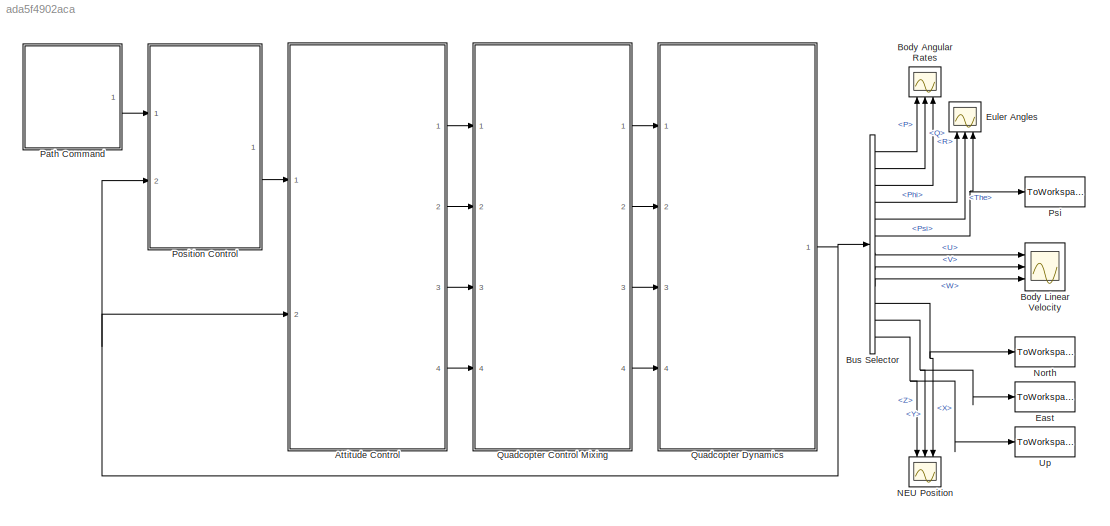
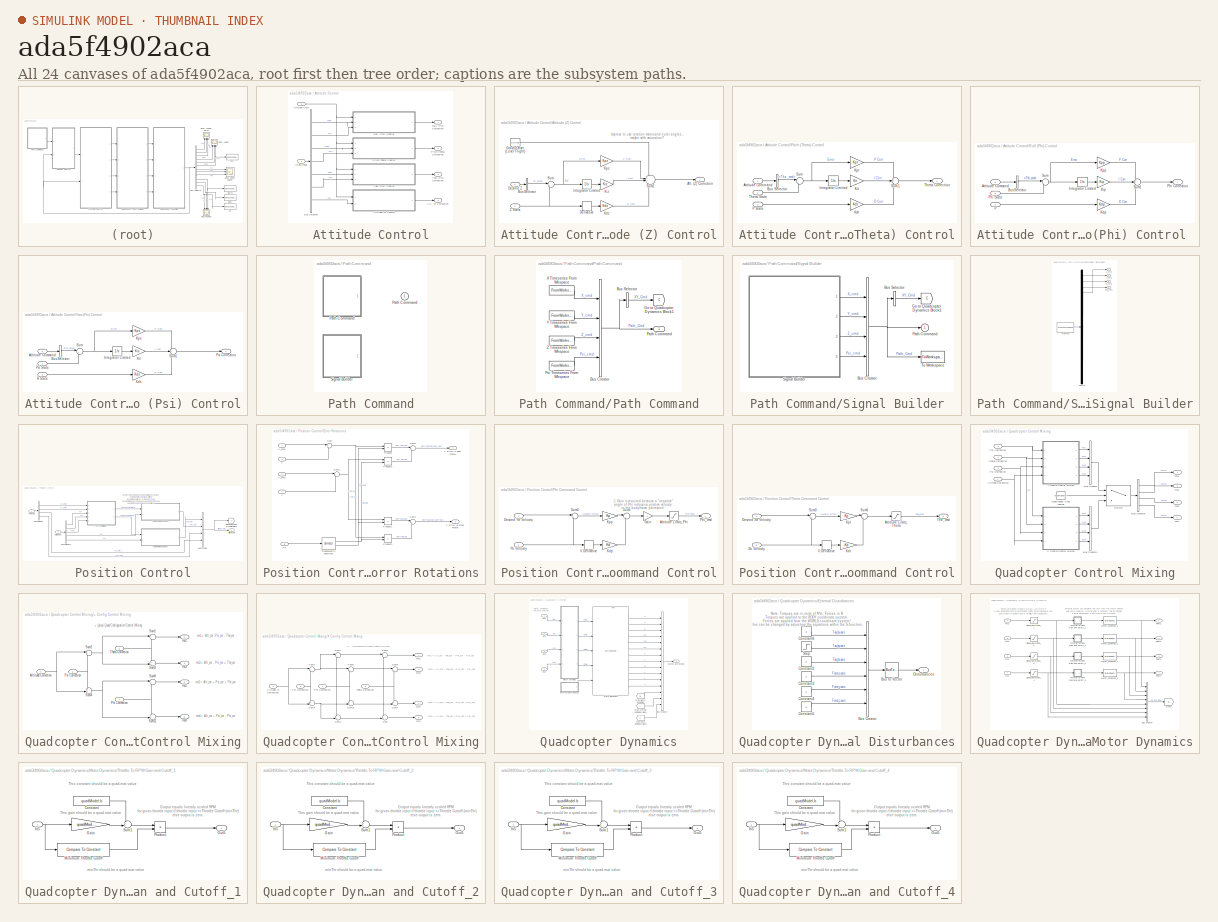
[diagram: thumbnail index - all 24 canvases of the model, root first then tree order]
MODEL slx_ada5f4902aca
KIND model
CONFIG AbsTol = auto
CONFIG FixedStep = auto
CONFIG MaxStep = auto
CONFIG MinStep = auto
CONFIG RelTol = 1e-3
CONFIG SampleTimeConstraint = Unconstrained
CONFIG Solver = VariableStepAuto
CONFIG SolverMode = Auto
CONFIG SolverName = VariableStepAuto
CONFIG StartTime = 0.0
CONFIG StopTime = 600
BLOCK [SubSystem] Attitude Control
  Ports = [2, 4]
  RequestExecContextInheritance = off
  Variant = off
BLOCK [Outport] Attitude Control/Alt. (Z) Correction
  IconDisplay = Port number
  Port = 4
BLOCK [SubSystem] Attitude Control/Altitude (Z) Control
  Ports = [2, 1]
  RequestExecContextInheritance = off
  Variant = off
BLOCK [Outport] Attitude Control/Altitude (Z) Control/Alt. (Z) Correction
  IconDisplay = Port number
BLOCK [BusSelector] Attitude Control/Altitude (Z) Control/Bus Selector
  OutputSignals = Z_cmd
  Ports = [1, 1]
BLOCK [Derivative] Attitude Control/Altitude (Z) Control/Derivative
BLOCK [Inport] Attitude Control/Altitude (Z) Control/Desired Z
  IconDisplay = Port number
BLOCK [Constant] Attitude Control/Altitude (Z) Control/Gravity Offset (Level Flight)
  Value = GOffset
BLOCK [Integrator] Attitude Control/Altitude (Z) Control/Integrator Limited
  LimitOutput = on
  LowerSaturationLimit = LSat
  Ports = [1, 1]
  UpperSaturationLimit = USat
BLOCK [Gain] Attitude Control/Altitude (Z) Control/Kdz
  Gain = Kdz
  OutDataTypeStr = Inherit: Inherit via internal rule
  ParamDataTypeStr = Inherit: Inherit via internal rule
  SaturateOnIntegerOverflow = off
BLOCK [Gain] Attitude Control/Altitude (Z) Control/Kiz
  Gain = Kiz
  OutDataTypeStr = Inherit: Inherit via internal rule
  ParamDataTypeStr = Inherit: Inherit via internal rule
  SaturateOnIntegerOverflow = off
BLOCK [Gain] Attitude Control/Altitude (Z) Control/Kpz
  Gain = Kpz
  OutDataTypeStr = Inherit: Inherit via internal rule
  ParamDataTypeStr = Inherit: Inherit via internal rule
  SaturateOnIntegerOverflow = off
BLOCK [Sum] Attitude Control/Altitude (Z) Control/Sum
  IconShape = round
  InputSameDT = off
  Inputs = |+-
  OutDataTypeStr = Inherit: Inherit via internal rule
  Ports = [2, 1]
  SaturateOnIntegerOverflow = off
BLOCK [Sum] Attitude Control/Altitude (Z) Control/Sum2
  IconShape = round
  InputSameDT = off
  Inputs = +++-
  OutDataTypeStr = Inherit: Inherit via internal rule
  Ports = [4, 1]
  SaturateOnIntegerOverflow = off
BLOCK [Inport] Attitude Control/Altitude (Z) Control/Z State
  IconDisplay = Port number
  Port = 2
BLOCK [Inport] Attitude Control/Attitude Cmd
  IconDisplay = Port number
BLOCK [BusSelector] Attitude Control/Bus Selector
  OutputSignals = Phi,P,The,Q,Psi,R,Z
  Ports = [1, 7]
BLOCK [SubSystem] Attitude Control/Pitch (Theta) Control
  Ports = [3, 1]
  RequestExecContextInheritance = off
  Variant = off
BLOCK [Inport] Attitude Control/Pitch (Theta) Control/Attitude Command
  IconDisplay = Port number
BLOCK [BusSelector] Attitude Control/Pitch (Theta) Control/Bus Selector
  OutputSignals = The_cmd
  Ports = [1, 1]
BLOCK [Integrator] Attitude Control/Pitch (Theta) Control/Integrator Limited
  LimitOutput = on
  LowerSaturationLimit = LSat
  Ports = [1, 1]
  UpperSaturationLimit = USat
BLOCK [Gain] Attitude Control/Pitch (Theta) Control/Kdt
  Gain = Kdt
  OutDataTypeStr = Inherit: Inherit via internal rule
  ParamDataTypeStr = Inherit: Inherit via internal rule
  SaturateOnIntegerOverflow = off
BLOCK [Gain] Attitude Control/Pitch (Theta) Control/Kit
  Gain = Kit
  OutDataTypeStr = Inherit: Inherit via internal rule
  ParamDataTypeStr = Inherit: Inherit via internal rule
  SaturateOnIntegerOverflow = off
BLOCK [Gain] Attitude Control/Pitch (Theta) Control/Kpt
  Gain = Kpt
  OutDataTypeStr = Inherit: Inherit via internal rule
  ParamDataTypeStr = Inherit: Inherit via internal rule
  SaturateOnIntegerOverflow = off
BLOCK [Inport] Attitude Control/Pitch (Theta) Control/P State
  IconDisplay = Port number
  Port = 3
BLOCK [Sum] Attitude Control/Pitch (Theta) Control/Sum
  IconShape = round
  InputSameDT = off
  Inputs = |+-
  OutDataTypeStr = Inherit: Inherit via internal rule
  Ports = [2, 1]
  SaturateOnIntegerOverflow = off
BLOCK [Sum] Attitude Control/Pitch (Theta) Control/Sum1
  IconShape = round
  InputSameDT = off
  Inputs = ++-
  OutDataTypeStr = Inherit: Inherit via internal rule
  Ports = [3, 1]
  SaturateOnIntegerOverflow = off
BLOCK [Outport] Attitude Control/Pitch (Theta) Control/Theta Correction
  IconDisplay = Port number
BLOCK [Inport] Attitude Control/Pitch (Theta) Control/Theta State
  IconDisplay = Port number
  Port = 2
BLOCK [Outport] Attitude Control/Pitch (Theta) Correction
  IconDisplay = Port number
  Port = 2
BLOCK [SubSystem] Attitude Control/Roll (Phi) Control 
  Ports = [3, 1]
  RequestExecContextInheritance = off
  Variant = off
BLOCK [Inport] Attitude Control/Roll (Phi) Control /Attitude Command 
  IconDisplay = Port number
BLOCK [BusSelector] Attitude Control/Roll (Phi) Control /Bus Selector
  OutputSignals = Phi_cmd
  Ports = [1, 1]
BLOCK [Integrator] Attitude Control/Roll (Phi) Control /Integrator Limited
  LimitOutput = on
  LowerSaturationLimit = LSat
  Ports = [1, 1]
  UpperSaturationLimit = USat
BLOCK [Gain] Attitude Control/Roll (Phi) Control /Kdp
  Gain = Kdp
  OutDataTypeStr = Inherit: Inherit via internal rule
  ParamDataTypeStr = Inherit: Inherit via internal rule
  SaturateOnIntegerOverflow = off
BLOCK [Gain] Attitude Control/Roll (Phi) Control /Kip
  Gain = Kip
  OutDataTypeStr = Inherit: Inherit via internal rule
  ParamDataTypeStr = Inherit: Inherit via internal rule
  SaturateOnIntegerOverflow = off
BLOCK [Gain] Attitude Control/Roll (Phi) Control /Kpp
  Gain = Kpp
  OutDataTypeStr = Inherit: Inherit via internal rule
  ParamDataTypeStr = Inherit: Inherit via internal rule
  SaturateOnIntegerOverflow = off
BLOCK [Inport] Attitude Control/Roll (Phi) Control /P
  IconDisplay = Port number
  Port = 3
BLOCK [Outport] Attitude Control/Roll (Phi) Control /Phi Correction
  IconDisplay = Port number
BLOCK [Inport] Attitude Control/Roll (Phi) Control /Phi State
  IconDisplay = Port number
  Port = 2
BLOCK [Sum] Attitude Control/Roll (Phi) Control /Sum
  IconShape = round
  InputSameDT = off
  Inputs = |+-
  OutDataTypeStr = Inherit: Inherit via internal rule
  Ports = [2, 1]
  SaturateOnIntegerOverflow = off
BLOCK [Sum] Attitude Control/Roll (Phi) Control /Sum1
  IconShape = round
  InputSameDT = off
  Inputs = ++-
  OutDataTypeStr = Inherit: Inherit via internal rule
  Ports = [3, 1]
  SaturateOnIntegerOverflow = off
BLOCK [Outport] Attitude Control/Roll (Phi) Correction
  IconDisplay = Port number
BLOCK [Inport] Attitude Control/State Input
  IconDisplay = Port number
  Port = 2
BLOCK [SubSystem] Attitude Control/Yaw (Psi) Control
  Ports = [3, 1]
  RequestExecContextInheritance = off
  Variant = off
BLOCK [Inport] Attitude Control/Yaw (Psi) Control/Attitude Command
  IconDisplay = Port number
BLOCK [BusSelector] Attitude Control/Yaw (Psi) Control/Bus Selector
  OutputSignals = Psi_cmd
  Ports = [1, 1]
BLOCK [Integrator] Attitude Control/Yaw (Psi) Control/Integrator Limited
  LimitOutput = on
  LowerSaturationLimit = LSat
  Ports = [1, 1]
  UpperSaturationLimit = USat
BLOCK [Gain] Attitude Control/Yaw (Psi) Control/Kds
  Gain = Kds
  OutDataTypeStr = Inherit: Inherit via internal rule
  ParamDataTypeStr = Inherit: Inherit via internal rule
  SaturateOnIntegerOverflow = off
BLOCK [Gain] Attitude Control/Yaw (Psi) Control/Kit
  Gain = Kis
  OutDataTypeStr = Inherit: Inherit via internal rule
  ParamDataTypeStr = Inherit: Inherit via internal rule
  SaturateOnIntegerOverflow = off
BLOCK [Gain] Attitude Control/Yaw (Psi) Control/Kps
  Gain = Kps
  OutDataTypeStr = Inherit: Inherit via internal rule
  ParamDataTypeStr = Inherit: Inherit via internal rule
  SaturateOnIntegerOverflow = off
BLOCK [Outport] Attitude Control/Yaw (Psi) Control/Psi Correction
  IconDisplay = Port number
BLOCK [Inport] Attitude Control/Yaw (Psi) Control/Psi State
  IconDisplay = Port number
  Port = 2
BLOCK [Inport] Attitude Control/Yaw (Psi) Control/R State
  IconDisplay = Port number
  Port = 3
BLOCK [Sum] Attitude Control/Yaw (Psi) Control/Sum
  IconShape = round
  InputSameDT = off
  Inputs = |+-
  OutDataTypeStr = Inherit: Inherit via internal rule
  Ports = [2, 1]
  SaturateOnIntegerOverflow = off
BLOCK [Sum] Attitude Control/Yaw (Psi) Control/Sum1
  IconShape = round
  InputSameDT = off
  Inputs = ++-
  OutDataTypeStr = Inherit: Inherit via internal rule
  Ports = [3, 1]
  SaturateOnIntegerOverflow = off
BLOCK [Outport] Attitude Control/Yaw (Psi) Correction
  IconDisplay = Port number
  Port = 3
BLOCK [Scope] Body Angular Rates
  NumInputPorts = 3
  Ports = [3]
  ScopeSpecificationString = Simulink.scopes.TimeScopeBlockCfg('CurrentConfiguration', extmgr.ConfigurationSet(extmgr.Configuration('Core','General UI',true),extmgr.Configuration('Core','Source UI',true),extmgr.Configuration('Sources','WiredSimulink',true),extmgr.Configuration('Visuals','Time Domain',true,'SerializedDisplays',{struct('MinYLimReal','-0.77581','MaxYLimReal','0.62337','YLabelReal','','MinYLimMag','0.00000','MaxY...<+1360ch>
BLOCK [Scope] Body Linear Velocity
  NumInputPorts = 3
  Ports = [3]
  ScopeSpecificationString = Simulink.scopes.TimeScopeBlockCfg('CurrentConfiguration', extmgr.ConfigurationSet(extmgr.Configuration('Core','General UI',true),extmgr.Configuration('Core','Source UI',true),extmgr.Configuration('Sources','WiredSimulink',true,'DataLoggingVariableName','ScopeData2'),extmgr.Configuration('Visuals','Time Domain',true,'SerializedDisplays',{struct('MinYLimReal','-1.03125','MaxYLimReal','1.70583','YLab...<+1399ch>
BLOCK [BusSelector] Bus Selector
  OutputSignals = P,Q,R,Phi,The,Psi,U,V,W,X,Y,Z
  Ports = [1, 12]
BLOCK [ToWorkspace] East
  FixptAsFi = on
  MaxDataPoints = inf
  Ports = [1]
  SampleTime = -1
  Save2DSignal = 3-D array (concatenate along third dimension)
  SaveFormat = Timeseries
  VariableName = posE
BLOCK [Scope] Euler Angles
  NumInputPorts = 3
  Ports = [3]
  ScopeSpecificationString = Simulink.scopes.TimeScopeBlockCfg('CurrentConfiguration', extmgr.ConfigurationSet(extmgr.Configuration('Core','General UI',true),extmgr.Configuration('Core','Source UI',true),extmgr.Configuration('Sources','WiredSimulink',true,'DataLoggingVariableName','ScopeData1'),extmgr.Configuration('Visuals','Time Domain',true,'SerializedDisplays',{struct('MinYLimReal','-0.21612','MaxYLimReal','0.21901','YLab...<+1403ch>
BLOCK [Scope] NEU Position
  NumInputPorts = 3
  Ports = [3]
  ScopeSpecificationString = Simulink.scopes.TimeScopeBlockCfg('CurrentConfiguration', extmgr.ConfigurationSet(extmgr.Configuration('Core','General UI',true),extmgr.Configuration('Core','Source UI',true),extmgr.Configuration('Sources','WiredSimulink',true,'DataLoggingVariableName','ScopeData3'),extmgr.Configuration('Visuals','Time Domain',true,'SerializedDisplays',{struct('MinYLimReal','-1.52949','MaxYLimReal','4.09197','YLab...<+1427ch>
BLOCK [ToWorkspace] North
  FixptAsFi = on
  MaxDataPoints = inf
  Ports = [1]
  SampleTime = -1
  Save2DSignal = 3-D array (concatenate along third dimension)
  SaveFormat = Timeseries
  VariableName = posN
BLOCK [SubSystem] Path Command
  OverrideUsingVariant = Variant1
  Ports = [0, 1]
  RequestExecContextInheritance = off
  Variant = on
BLOCK [SubSystem] Path Command/Path Command
  Ports = [0, 1]
  RequestExecContextInheritance = off
  Variant = off
  VariantControl = Variant1
BLOCK [Outport] Path Command/Path Command 
  IconDisplay = Port number
BLOCK [BusCreator] Path Command/Path Command/Bus Creator
  DisplayOption = bar
  InheritFromInputs = on
  Inputs = 4
  Ports = [4, 1]
BLOCK [BusSelector] Path Command/Path Command/Bus Selector
  OutputAsBus = on
  OutputSignals = X_cmd,Y_cmd
  Ports = [1, 1]
BLOCK [Goto] Path Command/Path Command/Go to Quadcopter Dynamics Block1
  GotoTag = C
  TagVisibility = global
BLOCK [Outport] Path Command/Path Command/Path Command 
  IconDisplay = Port number
BLOCK [FromWorkspace] Path Command/Path Command/Psi Timeseries From Wkspace
  OutputAfterFinalValue = Holding final value
  SampleTime = 0
  VariableName = path.psi
  ZeroCross = on
BLOCK [FromWorkspace] Path Command/Path Command/X Timeseries From Wkspace
  OutputAfterFinalValue = Holding final value
  SampleTime = 0
  VariableName = path.x
  ZeroCross = on
BLOCK [FromWorkspace] Path Command/Path Command/Y Timeseries From Wkspace
  OutputAfterFinalValue = Holding final value
  SampleTime = 0
  VariableName = path.y
  ZeroCross = on
BLOCK [FromWorkspace] Path Command/Path Command/Z Timeseries From Wkspace
  OutputAfterFinalValue = Holding final value
  SampleTime = 0
  VariableName = path.z
  ZeroCross = on
BLOCK [SubSystem] Path Command/Signal Builder
  Ports = [0, 1]
  RequestExecContextInheritance = off
  Variant = off
  VariantControl = Variant
BLOCK [BusCreator] Path Command/Signal Builder/Bus Creator
  DisplayOption = bar
  InheritFromInputs = on
  Inputs = 4
  Ports = [4, 1]
BLOCK [BusSelector] Path Command/Signal Builder/Bus Selector
  OutputAsBus = on
  OutputSignals = X_cmd,Y_cmd
  Ports = [1, 1]
BLOCK [Goto] Path Command/Signal Builder/Go to Quadcopter Dynamics Block1
  GotoTag = C
  TagVisibility = global
BLOCK [Outport] Path Command/Signal Builder/Path Command 
  IconDisplay = Port number
BLOCK [SubSystem] Path Command/Signal Builder/Signal Builder
  ClipboardFcn = sigbuilder_block('clipboard');
  CloseFcn = sigbuilder_block('close');
  ContinueFcn = sigbuilder_block('continue');
  CopyFcn = sigbuilder_block('copy');
  DeleteFcn = sigbuilder_block('delete');
  LoadFcn = sigbuilder_block('load');
  MaskHideContents = on
  ModelCloseFcn = sigbuilder_block('modelClose');
  NameChangeFcn = sigbuilder_block('namechange');
  OpenFcn = sigbuilder_block('open',[437.6 199.2 550.4 400 ]);
  PauseFcn = sigbuilder_block('pause');
  Ports = [0, 4]
  PreSaveFcn = sigbuilder_block('preSave');
  RequestExecContextInheritance = off
  StartFcn = sigbuilder_block('start');
  StopFcn = sigbuilder_block('stop');
  Tag = STV Subsys
  Variant = off
BLOCK [Demux] Path Command/Signal Builder/Signal Builder/Demux
  Ports = [1, 4]
  Tag = STV Demux
BLOCK [FromWorkspace] Path Command/Signal Builder/Signal Builder/FromWs
  SampleTime = 0
  Tag = STV FromWs
  VariableName = tuvar
  ZeroCross = on
BLOCK [Outport] Path Command/Signal Builder/Signal Builder/Psi_cmd
  IconDisplay = Port number
  Port = 4
  Tag = STV Outport
BLOCK [Outport] Path Command/Signal Builder/Signal Builder/X_cmd
  IconDisplay = Port number
  Tag = STV Outport
BLOCK [Outport] Path Command/Signal Builder/Signal Builder/Y_cmd
  IconDisplay = Port number
  Port = 2
  Tag = STV Outport
BLOCK [Outport] Path Command/Signal Builder/Signal Builder/Z_cmd
  IconDisplay = Port number
  Port = 3
  Tag = STV Outport
BLOCK [ToWorkspace] Path Command/Signal Builder/To Workspace
  FixptAsFi = on
  MaxDataPoints = inf
  Ports = [1]
  SampleTime = -1
  Save2DSignal = 3-D array (concatenate along third dimension)
  SaveFormat = Timeseries
  VariableName = path
BLOCK [SubSystem] Position Control
  Ports = [2, 1]
  RequestExecContextInheritance = off
  Variant = off
BLOCK [Outport] Position Control/Attitude Cmd
  IconDisplay = Port number
BLOCK [BusCreator] Position Control/Bus Creator
  DisplayOption = bar
  InheritFromInputs = on
  Inputs = 4
  Ports = [4, 1]
BLOCK [BusSelector] Position Control/Bus Selector
  OutputSignals = X_cmd,Y_cmd,Z_cmd,Psi_cmd
  Ports = [1, 4]
BLOCK [BusSelector] Position Control/Bus Selector1
  OutputSignals = X,Y,Psi,U,V
  Ports = [1, 5]
BLOCK [SubSystem] Position Control/Error Rotations
  Ports = [5, 2]
  RequestExecContextInheritance = off
  Variant = off
BLOCK [Product] Position Control/Error Rotations/Product
  InputSameDT = off
  OutDataTypeStr = Inherit: Inherit via internal rule
  Ports = [2, 1]
  RndMeth = Floor
  SaturateOnIntegerOverflow = off
BLOCK [Product] Position Control/Error Rotations/Product1
  InputSameDT = off
  OutDataTypeStr = Inherit: Inherit via internal rule
  Ports = [2, 1]
  RndMeth = Floor
  SaturateOnIntegerOverflow = off
BLOCK [Product] Position Control/Error Rotations/Product2
  InputSameDT = off
  OutDataTypeStr = Inherit: Inherit via internal rule
  Ports = [2, 1]
  RndMeth = Floor
  SaturateOnIntegerOverflow = off
BLOCK [Product] Position Control/Error Rotations/Product3
  InputSameDT = off
  OutDataTypeStr = Inherit: Inherit via internal rule
  Ports = [2, 1]
  RndMeth = Floor
  SaturateOnIntegerOverflow = off
BLOCK [Inport] Position Control/Error Rotations/Psi
  IconDisplay = Port number
  Port = 5
BLOCK [Sum] Position Control/Error Rotations/Sum
  IconShape = round
  InputSameDT = off
  Inputs = |+-
  OutDataTypeStr = Inherit: Inherit via internal rule
  Ports = [2, 1]
  SaturateOnIntegerOverflow = off
BLOCK [Sum] Position Control/Error Rotations/Sum1
  IconShape = round
  InputSameDT = off
  Inputs = |+-
  OutDataTypeStr = Inherit: Inherit via internal rule
  Ports = [2, 1]
  SaturateOnIntegerOverflow = off
BLOCK [Sum] Position Control/Error Rotations/Sum2
  IconShape = round
  InputSameDT = off
  Inputs = |++
  OutDataTypeStr = Inherit: Inherit via internal rule
  Ports = [2, 1]
  SaturateOnIntegerOverflow = off
BLOCK [Sum] Position Control/Error Rotations/Sum4
  IconShape = round
  InputSameDT = off
  Inputs = |+-
  OutDataTypeStr = Inherit: Inherit via internal rule
  Ports = [2, 1]
  SaturateOnIntegerOverflow = off
BLOCK [Trigonometry] Position Control/Error Rotations/Trigonometric Functions
  Operator = sincos
  Ports = [1, 2]
BLOCK [Inport] Position Control/Error Rotations/X
  IconDisplay = Port number
  Port = 3
BLOCK [Outport] Position Control/Error Rotations/X Error in body Frame
  IconDisplay = Port number
BLOCK [Inport] Position Control/Error Rotations/X_cmd
  IconDisplay = Port number
BLOCK [Inport] Position Control/Error Rotations/Y
  IconDisplay = Port number
  Port = 4
BLOCK [Outport] Position Control/Error Rotations/Y Error in Body Frame
  IconDisplay = Port number
  Port = 2
BLOCK [Inport] Position Control/Error Rotations/Y_cmd
  IconDisplay = Port number
  Port = 2
BLOCK [Goto] Position Control/Goto Quadcopter Dynamics Block
  TagVisibility = global
BLOCK [Inport] Position Control/Path Cmd
  IconDisplay = Port number
BLOCK [SubSystem] Position Control/Phi Command Control
  Ports = [2, 1]
  RequestExecContextInheritance = off
  Variant = off
BLOCK [Saturate] Position Control/Phi Command Control/Attitude Limits_Phi
  InputPortMap = u0
  LowerLimit = -ASat
  Ports = [1, 1]
  UpperLimit = ASat
BLOCK [Inport] Position Control/Phi Command Control/Desired Yb Velocity
  IconDisplay = Port number
BLOCK [Gain] Position Control/Phi Command Control/Gain
  Gain = -1
  OutDataTypeStr = Inherit: Inherit via internal rule
  ParamDataTypeStr = Inherit: Inherit via internal rule
  SaturateOnIntegerOverflow = off
BLOCK [Gain] Position Control/Phi Command Control/Kdp
  Gain = Kd
  OutDataTypeStr = Inherit: Inherit via internal rule
  ParamDataTypeStr = Inherit: Inherit via internal rule
  SaturateOnIntegerOverflow = off
BLOCK [Gain] Position Control/Phi Command Control/Kpp
  Gain = Kp
  OutDataTypeStr = Inherit: Inherit via internal rule
  ParamDataTypeStr = Inherit: Inherit via internal rule
  SaturateOnIntegerOverflow = off
BLOCK [Outport] Position Control/Phi Command Control/Phi_cmd
  IconDisplay = Port number
BLOCK [Sum] Position Control/Phi Command Control/Sum3
  IconShape = round
  InputSameDT = off
  Inputs = |+-
  OutDataTypeStr = Inherit: Inherit via internal rule
  Ports = [2, 1]
  SaturateOnIntegerOverflow = off
BLOCK [Sum] Position Control/Phi Command Control/Sum6
  IconShape = round
  InputSameDT = off
  Inputs = |+-
  OutDataTypeStr = Inherit: Inherit via internal rule
  Ports = [2, 1]
  SaturateOnIntegerOverflow = off
BLOCK [Derivative] Position Control/Phi Command Control/V Derivative
BLOCK [Inport] Position Control/Phi Command Control/Yb Velocity
  IconDisplay = Port number
  Port = 2
BLOCK [Inport] Position Control/State Input
  IconDisplay = Port number
  Port = 2
BLOCK [SubSystem] Position Control/Theta Command Control
  Ports = [2, 1]
  RequestExecContextInheritance = off
  Variant = off
BLOCK [Saturate] Position Control/Theta Command Control/Attitude Limits_Theta
  InputPortMap = u0
  LowerLimit = -ASat
  Ports = [1, 1]
  UpperLimit = ASat
BLOCK [Inport] Position Control/Theta Command Control/Desired Xb Velocity
  IconDisplay = Port number
BLOCK [Gain] Position Control/Theta Command Control/Kdt
  Gain = Kd
  OutDataTypeStr = Inherit: Inherit via internal rule
  ParamDataTypeStr = Inherit: Inherit via internal rule
  SaturateOnIntegerOverflow = off
BLOCK [Gain] Position Control/Theta Command Control/Kpt
  Gain = Kp
  OutDataTypeStr = Inherit: Inherit via internal rule
  ParamDataTypeStr = Inherit: Inherit via internal rule
  SaturateOnIntegerOverflow = off
BLOCK [Sum] Position Control/Theta Command Control/Sum3
  IconShape = round
  InputSameDT = off
  Inputs = |+-
  OutDataTypeStr = Inherit: Inherit via internal rule
  Ports = [2, 1]
  SaturateOnIntegerOverflow = off
BLOCK [Sum] Position Control/Theta Command Control/Sum6
  IconShape = round
  InputSameDT = off
  Inputs = |+-
  OutDataTypeStr = Inherit: Inherit via internal rule
  Ports = [2, 1]
  SaturateOnIntegerOverflow = off
BLOCK [Outport] Position Control/Theta Command Control/The_cmd
  IconDisplay = Port number
BLOCK [Derivative] Position Control/Theta Command Control/U Derivative
BLOCK [Inport] Position Control/Theta Command Control/Xb Velocity
  IconDisplay = Port number
  Port = 2
BLOCK [ToWorkspace] Psi
  FixptAsFi = on
  MaxDataPoints = inf
  Ports = [1]
  SampleTime = -1
  Save2DSignal = 3-D array (concatenate along third dimension)
  SaveFormat = Timeseries
  VariableName = attPsi
BLOCK [SubSystem] Quadcopter Control Mixing
  Ports = [4, 4]
  RequestExecContextInheritance = off
  Variant = off
BLOCK [SubSystem] Quadcopter Control Mixing/+ Config Control Mixing
  Ports = [4, 4]
  RequestExecContextInheritance = off
  Variant = off
BLOCK [Inport] Quadcopter Control Mixing/+ Config Control Mixing/Altitude Correction
  IconDisplay = Port number
  Port = 4
BLOCK [Inport] Quadcopter Control Mixing/+ Config Control Mixing/Phi Correction
  IconDisplay = Port number
BLOCK [Inport] Quadcopter Control Mixing/+ Config Control Mixing/Psi Correction
  IconDisplay = Port number
  Port = 3
BLOCK [Sum] Quadcopter Control Mixing/+ Config Control Mixing/Sum1
  IconShape = round
  InputSameDT = off
  Inputs = |+-
  OutDataTypeStr = Inherit: Inherit via internal rule
  Ports = [2, 1]
  SaturateOnIntegerOverflow = off
BLOCK [Sum] Quadcopter Control Mixing/+ Config Control Mixing/Sum11
  IconShape = round
  InputSameDT = off
  Inputs = -+|
  OutDataTypeStr = Inherit: Inherit via internal rule
  Ports = [2, 1]
  SaturateOnIntegerOverflow = off
BLOCK [Sum] Quadcopter Control Mixing/+ Config Control Mixing/Sum2
  IconShape = round
  InputSameDT = off
  Inputs = |+-
  OutDataTypeStr = Inherit: Inherit via internal rule
  Ports = [2, 1]
  SaturateOnIntegerOverflow = off
BLOCK [Sum] Quadcopter Control Mixing/+ Config Control Mixing/Sum3
  IconShape = round
  InputSameDT = off
  Inputs = ++|
  OutDataTypeStr = Inherit: Inherit via internal rule
  Ports = [2, 1]
  SaturateOnIntegerOverflow = off
BLOCK [Sum] Quadcopter Control Mixing/+ Config Control Mixing/Sum4
  IconShape = round
  InputSameDT = off
  Inputs = ++|
  OutDataTypeStr = Inherit: Inherit via internal rule
  Ports = [2, 1]
  SaturateOnIntegerOverflow = off
BLOCK [Sum] Quadcopter Control Mixing/+ Config Control Mixing/Sum8
  IconShape = round
  InputSameDT = off
  Inputs = |++
  OutDataTypeStr = Inherit: Inherit via internal rule
  Ports = [2, 1]
  SaturateOnIntegerOverflow = off
BLOCK [Inport] Quadcopter Control Mixing/+ Config Control Mixing/Theta Correction
  IconDisplay = Port number
  Port = 2
BLOCK [Outport] Quadcopter Control Mixing/+ Config Control Mixing/mc1
  IconDisplay = Port number
BLOCK [Outport] Quadcopter Control Mixing/+ Config Control Mixing/mc2
  IconDisplay = Port number
  Port = 2
BLOCK [Outport] Quadcopter Control Mixing/+ Config Control Mixing/mc3
  IconDisplay = Port number
  Port = 3
BLOCK [Outport] Quadcopter Control Mixing/+ Config Control Mixing/mc4
  IconDisplay = Port number
  Port = 4
BLOCK [Inport] Quadcopter Control Mixing/Altitude Correction
  IconDisplay = Port number
  Port = 4
BLOCK [BusCreator] Quadcopter Control Mixing/Bus Creator
  DisplayOption = bar
  InheritFromInputs = on
  Inputs = 4
  Ports = [4, 1]
BLOCK [BusCreator] Quadcopter Control Mixing/Bus Creator1
  DisplayOption = bar
  InheritFromInputs = on
  Inputs = 4
  Ports = [4, 1]
BLOCK [BusSelector] Quadcopter Control Mixing/Bus Selector
  OutputSignals = mc1,mc2,mc3,mc4
  Ports = [1, 4]
BLOCK [Inport] Quadcopter Control Mixing/Phi Correction
  IconDisplay = Port number
BLOCK [Inport] Quadcopter Control Mixing/Psi Correction
  IconDisplay = Port number
  Port = 3
BLOCK [Constant] Quadcopter Control Mixing/Quad Model Type Logical
  Value = quadModel.plusConfig
BLOCK [Switch] Quadcopter Control Mixing/Switch
  Criteria = u2 ~= 0
  InputSameDT = off
  SaturateOnIntegerOverflow = off
BLOCK [Inport] Quadcopter Control Mixing/Theta Correction
  IconDisplay = Port number
  Port = 2
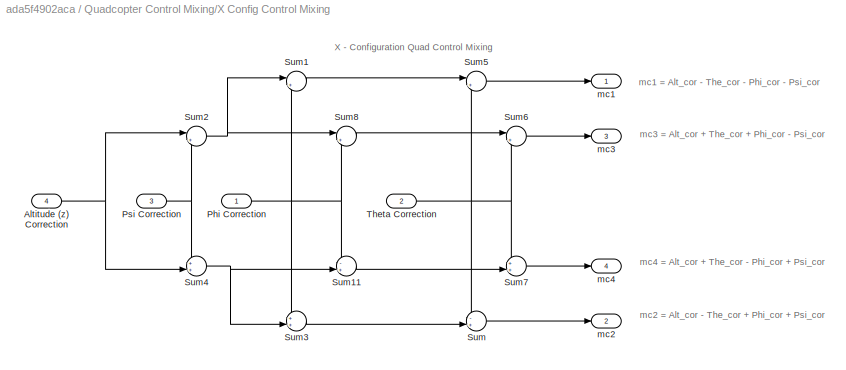
BLOCK [SubSystem] Quadcopter Control Mixing/X Config Control Mixing
  Ports = [4, 4]
  RequestExecContextInheritance = off
  Variant = off
BLOCK [Inport] Quadcopter Control Mixing/X Config Control Mixing/Altitude (z) Correction
  IconDisplay = Port number
  Port = 4
BLOCK [Inport] Quadcopter Control Mixing/X Config Control Mixing/Phi Correction
  IconDisplay = Port number
BLOCK [Inport] Quadcopter Control Mixing/X Config Control Mixing/Psi Correction
  IconDisplay = Port number
  Port = 3
BLOCK [Sum] Quadcopter Control Mixing/X Config Control Mixing/Sum
  IconShape = round
  InputSameDT = off
  Inputs = -+|
  OutDataTypeStr = Inherit: Inherit via internal rule
  Ports = [2, 1]
  SaturateOnIntegerOverflow = off
BLOCK [Sum] Quadcopter Control Mixing/X Config Control Mixing/Sum1
  IconShape = round
  InputSameDT = off
  Inputs = |+-
  OutDataTypeStr = Inherit: Inherit via internal rule
  Ports = [2, 1]
  SaturateOnIntegerOverflow = off
BLOCK [Sum] Quadcopter Control Mixing/X Config Control Mixing/Sum11
  IconShape = round
  InputSameDT = off
  Inputs = -+|
  OutDataTypeStr = Inherit: Inherit via internal rule
  Ports = [2, 1]
  SaturateOnIntegerOverflow = off
BLOCK [Sum] Quadcopter Control Mixing/X Config Control Mixing/Sum2
  IconShape = round
  InputSameDT = off
  Inputs = |+-
  OutDataTypeStr = Inherit: Inherit via internal rule
  Ports = [2, 1]
  SaturateOnIntegerOverflow = off
BLOCK [Sum] Quadcopter Control Mixing/X Config Control Mixing/Sum3
  IconShape = round
  InputSameDT = off
  Inputs = ++|
  OutDataTypeStr = Inherit: Inherit via internal rule
  Ports = [2, 1]
  SaturateOnIntegerOverflow = off
BLOCK [Sum] Quadcopter Control Mixing/X Config Control Mixing/Sum4
  IconShape = round
  InputSameDT = off
  Inputs = ++|
  OutDataTypeStr = Inherit: Inherit via internal rule
  Ports = [2, 1]
  SaturateOnIntegerOverflow = off
BLOCK [Sum] Quadcopter Control Mixing/X Config Control Mixing/Sum5
  IconShape = round
  InputSameDT = off
  Inputs = |+-
  OutDataTypeStr = Inherit: Inherit via internal rule
  Ports = [2, 1]
  SaturateOnIntegerOverflow = off
BLOCK [Sum] Quadcopter Control Mixing/X Config Control Mixing/Sum6
  IconShape = round
  InputSameDT = off
  Inputs = |++
  OutDataTypeStr = Inherit: Inherit via internal rule
  Ports = [2, 1]
  SaturateOnIntegerOverflow = off
BLOCK [Sum] Quadcopter Control Mixing/X Config Control Mixing/Sum7
  IconShape = round
  InputSameDT = off
  Inputs = ++|
  OutDataTypeStr = Inherit: Inherit via internal rule
  Ports = [2, 1]
  SaturateOnIntegerOverflow = off
BLOCK [Sum] Quadcopter Control Mixing/X Config Control Mixing/Sum8
  IconShape = round
  InputSameDT = off
  Inputs = |++
  OutDataTypeStr = Inherit: Inherit via internal rule
  Ports = [2, 1]
  SaturateOnIntegerOverflow = off
BLOCK [Inport] Quadcopter Control Mixing/X Config Control Mixing/Theta Correction
  IconDisplay = Port number
  Port = 2
BLOCK [Outport] Quadcopter Control Mixing/X Config Control Mixing/mc1
  IconDisplay = Port number
BLOCK [Outport] Quadcopter Control Mixing/X Config Control Mixing/mc2
  IconDisplay = Port number
  Port = 2
BLOCK [Outport] Quadcopter Control Mixing/X Config Control Mixing/mc3
  IconDisplay = Port number
  Port = 3
BLOCK [Outport] Quadcopter Control Mixing/X Config Control Mixing/mc4
  IconDisplay = Port number
  Port = 4
BLOCK [Outport] Quadcopter Control Mixing/mc1
  IconDisplay = Port number
BLOCK [Outport] Quadcopter Control Mixing/mc2
  IconDisplay = Port number
  Port = 2
BLOCK [Outport] Quadcopter Control Mixing/mc3
  IconDisplay = Port number
  Port = 3
BLOCK [Outport] Quadcopter Control Mixing/mc4
  IconDisplay = Port number
  Port = 4
BLOCK [SubSystem] Quadcopter Dynamics
  Ports = [4, 1]
  RequestExecContextInheritance = off
  Variant = off
BLOCK [BusCreator] Quadcopter Dynamics/Bus Creator
  DisplayOption = bar
  InheritFromInputs = on
  Inputs = 'P','Q','R','Phi','The','Psi','U','V','W','X','Y','Z','mc and RPM','Attitude_Cmd','XY_Cmd'
  Ports = [15, 1]
BLOCK [SubSystem] Quadcopter Dynamics/External Disturbances
  Ports = [0, 1]
  RequestExecContextInheritance = off
  Variant = off
BLOCK [BusCreator] Quadcopter Dynamics/External Disturbances/Bus Creator
  DisplayOption = bar
  InheritFromInputs = on
  Inputs = 6
  Ports = [6, 1]
BLOCK [BusToVector] Quadcopter Dynamics/External Disturbances/Bus to Vector
BLOCK [Constant] Quadcopter Dynamics/External Disturbances/Constant2
  Value = 0
BLOCK [Constant] Quadcopter Dynamics/External Disturbances/Constant3
  Value = 0
BLOCK [Constant] Quadcopter Dynamics/External Disturbances/Constant4
  Value = 0
BLOCK [Constant] Quadcopter Dynamics/External Disturbances/Constant5
  Value = 0
BLOCK [Constant] Quadcopter Dynamics/External Disturbances/Constant6
  Value = 0
BLOCK [Outport] Quadcopter Dynamics/External Disturbances/Disturbances 
  IconDisplay = Port number
BLOCK [Step] Quadcopter Dynamics/External Disturbances/Step
  After = 0
  SampleTime = 0
BLOCK [From] Quadcopter Dynamics/From Attitude Command Block
  TagVisibility = global
BLOCK [From] Quadcopter Dynamics/From Motor Dynamics
  GotoTag = B
  TagVisibility = global
BLOCK [From] Quadcopter Dynamics/From Path Command Block
  GotoTag = C
  TagVisibility = global
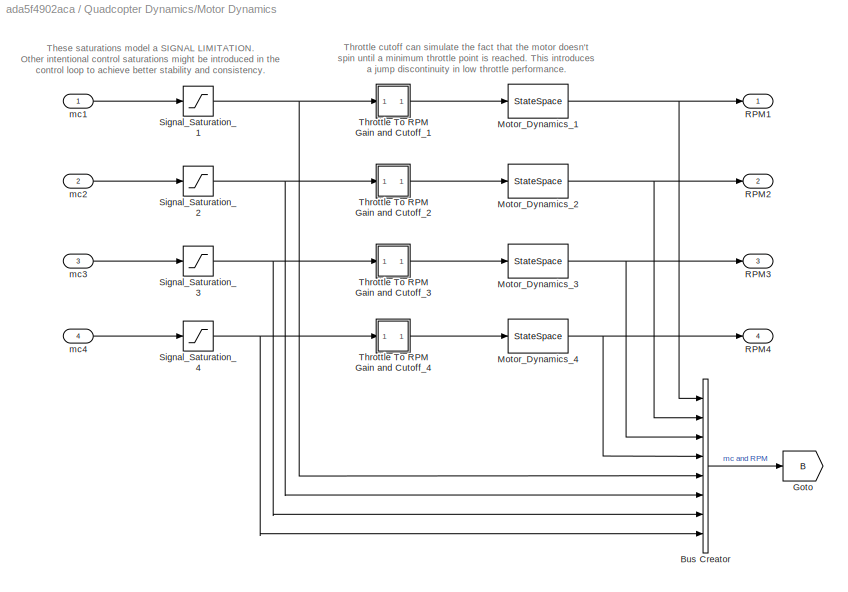
BLOCK [SubSystem] Quadcopter Dynamics/Motor Dynamics
  Ports = [4, 4]
  RequestExecContextInheritance = off
  Variant = off
BLOCK [BusCreator] Quadcopter Dynamics/Motor Dynamics/Bus Creator
  DisplayOption = bar
  InheritFromInputs = on
  Inputs = 8
  Ports = [8, 1]
BLOCK [Goto] Quadcopter Dynamics/Motor Dynamics/Goto
  GotoTag = B
  TagVisibility = global
BLOCK [StateSpace] Quadcopter Dynamics/Motor Dynamics/Motor_Dynamics_1
  A = -1/quadModel.T
  C = 1/quadModel.T
  D = 0
  Ports = [1, 1]
  X0 = IC.w1*quadModel.T
BLOCK [StateSpace] Quadcopter Dynamics/Motor Dynamics/Motor_Dynamics_2
  A = -1/quadModel.T
  C = 1/quadModel.T
  D = 0
  Ports = [1, 1]
  X0 = IC.w2*quadModel.T
BLOCK [StateSpace] Quadcopter Dynamics/Motor Dynamics/Motor_Dynamics_3
  A = -1/quadModel.T
  C = 1/quadModel.T
  D = 0
  Ports = [1, 1]
  X0 = IC.w3*quadModel.T
BLOCK [StateSpace] Quadcopter Dynamics/Motor Dynamics/Motor_Dynamics_4
  A = -1/quadModel.T
  C = 1/quadModel.T
  D = 0
  Ports = [1, 1]
  X0 = IC.w4*quadModel.T
BLOCK [Outport] Quadcopter Dynamics/Motor Dynamics/RPM1
  IconDisplay = Port number
BLOCK [Outport] Quadcopter Dynamics/Motor Dynamics/RPM2
  IconDisplay = Port number
  Port = 2
BLOCK [Outport] Quadcopter Dynamics/Motor Dynamics/RPM3
  IconDisplay = Port number
  Port = 3
BLOCK [Outport] Quadcopter Dynamics/Motor Dynamics/RPM4
  IconDisplay = Port number
  Port = 4
BLOCK [Saturate] Quadcopter Dynamics/Motor Dynamics/Signal_Saturation_1
  InputPortMap = u0
  LowerLimit = 0
  Ports = [1, 1]
  UpperLimit = 100
BLOCK [Saturate] Quadcopter Dynamics/Motor Dynamics/Signal_Saturation_2
  InputPortMap = u0
  LowerLimit = 0
  Ports = [1, 1]
  UpperLimit = 100
BLOCK [Saturate] Quadcopter Dynamics/Motor Dynamics/Signal_Saturation_3
  InputPortMap = u0
  LowerLimit = 0
  Ports = [1, 1]
  UpperLimit = 100
BLOCK [Saturate] Quadcopter Dynamics/Motor Dynamics/Signal_Saturation_4
  InputPortMap = u0
  LowerLimit = 0
  Ports = [1, 1]
  UpperLimit = 100
BLOCK [SubSystem] Quadcopter Dynamics/Motor Dynamics/Throttle To RPM Gain and Cutoff_1
  Ports = [1, 1]
  RequestExecContextInheritance = off
  ShowPortLabels = none
  Variant = off
BLOCK [Constant] Quadcopter Dynamics/Motor Dynamics/Throttle To RPM Gain and Cutoff_1/Constant
  Value = quadModel.b
BLOCK [Gain] Quadcopter Dynamics/Motor Dynamics/Throttle To RPM Gain and Cutoff_1/Gain
  Gain = quadModel.cr
  OutDataTypeStr = Inherit: Inherit via internal rule
  ParamDataTypeStr = Inherit: Inherit via internal rule
  SaturateOnIntegerOverflow = off
BLOCK [Inport] Quadcopter Dynamics/Motor Dynamics/Throttle To RPM Gain and Cutoff_1/In5
  IconDisplay = Port number
BLOCK [Reference] Quadcopter Dynamics/Motor Dynamics/Throttle To RPM Gain and Cutoff_1/Minimum Throttle Cutoff  REF=simulink/Logic and Bit
Operations/Compare
To Constant
  Ports = [1, 1]
  SourceBlock = simulink/Logic and Bit\nOperations/Compare\nTo Constant
  SourceType = Compare To Constant
BLOCK [Outport] Quadcopter Dynamics/Motor Dynamics/Throttle To RPM Gain and Cutoff_1/Out5
  IconDisplay = Port number
BLOCK [Product] Quadcopter Dynamics/Motor Dynamics/Throttle To RPM Gain and Cutoff_1/Product
  InputSameDT = off
  OutDataTypeStr = Inherit: Inherit via internal rule
  Ports = [2, 1]
  RndMeth = Floor
  SaturateOnIntegerOverflow = off
BLOCK [Sum] Quadcopter Dynamics/Motor Dynamics/Throttle To RPM Gain and Cutoff_1/Sum1
  IconShape = round
  InputSameDT = off
  Inputs = ++|
  OutDataTypeStr = Inherit: Inherit via internal rule
  Ports = [2, 1]
  SaturateOnIntegerOverflow = off
BLOCK [SubSystem] Quadcopter Dynamics/Motor Dynamics/Throttle To RPM Gain and Cutoff_2
  Ports = [1, 1]
  RequestExecContextInheritance = off
  ShowPortLabels = none
  Variant = off
BLOCK [Constant] Quadcopter Dynamics/Motor Dynamics/Throttle To RPM Gain and Cutoff_2/Constant
  Value = quadModel.b
BLOCK [Gain] Quadcopter Dynamics/Motor Dynamics/Throttle To RPM Gain and Cutoff_2/Gain
  Gain = quadModel.cr
  OutDataTypeStr = Inherit: Inherit via internal rule
  ParamDataTypeStr = Inherit: Inherit via internal rule
  SaturateOnIntegerOverflow = off
BLOCK [Inport] Quadcopter Dynamics/Motor Dynamics/Throttle To RPM Gain and Cutoff_2/In5
  IconDisplay = Port number
BLOCK [Reference] Quadcopter Dynamics/Motor Dynamics/Throttle To RPM Gain and Cutoff_2/Minimum Throttle Cutoff  REF=simulink/Logic and Bit
Operations/Compare
To Constant
  Ports = [1, 1]
  SourceBlock = simulink/Logic and Bit\nOperations/Compare\nTo Constant
  SourceType = Compare To Constant
BLOCK [Outport] Quadcopter Dynamics/Motor Dynamics/Throttle To RPM Gain and Cutoff_2/Out5
  IconDisplay = Port number
BLOCK [Product] Quadcopter Dynamics/Motor Dynamics/Throttle To RPM Gain and Cutoff_2/Product
  InputSameDT = off
  OutDataTypeStr = Inherit: Inherit via internal rule
  Ports = [2, 1]
  RndMeth = Floor
  SaturateOnIntegerOverflow = off
BLOCK [Sum] Quadcopter Dynamics/Motor Dynamics/Throttle To RPM Gain and Cutoff_2/Sum1
  IconShape = round
  InputSameDT = off
  Inputs = ++|
  OutDataTypeStr = Inherit: Inherit via internal rule
  Ports = [2, 1]
  SaturateOnIntegerOverflow = off
BLOCK [SubSystem] Quadcopter Dynamics/Motor Dynamics/Throttle To RPM Gain and Cutoff_3
  Ports = [1, 1]
  RequestExecContextInheritance = off
  ShowPortLabels = none
  Variant = off
BLOCK [Constant] Quadcopter Dynamics/Motor Dynamics/Throttle To RPM Gain and Cutoff_3/Constant
  Value = quadModel.b
BLOCK [Gain] Quadcopter Dynamics/Motor Dynamics/Throttle To RPM Gain and Cutoff_3/Gain
  Gain = quadModel.cr
  OutDataTypeStr = Inherit: Inherit via internal rule
  ParamDataTypeStr = Inherit: Inherit via internal rule
  SaturateOnIntegerOverflow = off
BLOCK [Inport] Quadcopter Dynamics/Motor Dynamics/Throttle To RPM Gain and Cutoff_3/In5
  IconDisplay = Port number
BLOCK [Reference] Quadcopter Dynamics/Motor Dynamics/Throttle To RPM Gain and Cutoff_3/Minimum Throttle Cutoff  REF=simulink/Logic and Bit
Operations/Compare
To Constant
  Ports = [1, 1]
  SourceBlock = simulink/Logic and Bit\nOperations/Compare\nTo Constant
  SourceType = Compare To Constant
BLOCK [Outport] Quadcopter Dynamics/Motor Dynamics/Throttle To RPM Gain and Cutoff_3/Out5
  IconDisplay = Port number
BLOCK [Product] Quadcopter Dynamics/Motor Dynamics/Throttle To RPM Gain and Cutoff_3/Product
  InputSameDT = off
  OutDataTypeStr = Inherit: Inherit via internal rule
  Ports = [2, 1]
  RndMeth = Floor
  SaturateOnIntegerOverflow = off
BLOCK [Sum] Quadcopter Dynamics/Motor Dynamics/Throttle To RPM Gain and Cutoff_3/Sum1
  IconShape = round
  InputSameDT = off
  Inputs = ++|
  OutDataTypeStr = Inherit: Inherit via internal rule
  Ports = [2, 1]
  SaturateOnIntegerOverflow = off
BLOCK [SubSystem] Quadcopter Dynamics/Motor Dynamics/Throttle To RPM Gain and Cutoff_4
  Ports = [1, 1]
  RequestExecContextInheritance = off
  ShowPortLabels = none
  Variant = off
BLOCK [Constant] Quadcopter Dynamics/Motor Dynamics/Throttle To RPM Gain and Cutoff_4/Constant
  Value = quadModel.b
BLOCK [Gain] Quadcopter Dynamics/Motor Dynamics/Throttle To RPM Gain and Cutoff_4/Gain
  Gain = quadModel.cr
  OutDataTypeStr = Inherit: Inherit via internal rule
  ParamDataTypeStr = Inherit: Inherit via internal rule
  SaturateOnIntegerOverflow = off
BLOCK [Inport] Quadcopter Dynamics/Motor Dynamics/Throttle To RPM Gain and Cutoff_4/In5
  IconDisplay = Port number
BLOCK [Reference] Quadcopter Dynamics/Motor Dynamics/Throttle To RPM Gain and Cutoff_4/Minimum Throttle Cutoff  REF=simulink/Logic and Bit
Operations/Compare
To Constant
  Ports = [1, 1]
  SourceBlock = simulink/Logic and Bit\nOperations/Compare\nTo Constant
  SourceType = Compare To Constant
BLOCK [Outport] Quadcopter Dynamics/Motor Dynamics/Throttle To RPM Gain and Cutoff_4/Out5
  IconDisplay = Port number
BLOCK [Product] Quadcopter Dynamics/Motor Dynamics/Throttle To RPM Gain and Cutoff_4/Product
  InputSameDT = off
  OutDataTypeStr = Inherit: Inherit via internal rule
  Ports = [2, 1]
  RndMeth = Floor
  SaturateOnIntegerOverflow = off
BLOCK [Sum] Quadcopter Dynamics/Motor Dynamics/Throttle To RPM Gain and Cutoff_4/Sum1
  IconShape = round
  InputSameDT = off
  Inputs = ++|
  OutDataTypeStr = Inherit: Inherit via internal rule
  Ports = [2, 1]
  SaturateOnIntegerOverflow = off
BLOCK [Inport] Quadcopter Dynamics/Motor Dynamics/mc1
  IconDisplay = Port number
BLOCK [Inport] Quadcopter Dynamics/Motor Dynamics/mc2
  IconDisplay = Port number
  Port = 2
BLOCK [Inport] Quadcopter Dynamics/Motor Dynamics/mc3
  IconDisplay = Port number
  Port = 3
BLOCK [Inport] Quadcopter Dynamics/Motor Dynamics/mc4
  IconDisplay = Port number
  Port = 4
BLOCK [M-S-Function] Quadcopter Dynamics/State Equations
  FunctionName = quadcopterDynamicsSFunction
  Parameters = quadModel, IC
  Ports = [5, 12]
BLOCK [Outport] Quadcopter Dynamics/States and Output
  IconDisplay = Port number
BLOCK [Inport] Quadcopter Dynamics/mc1
  IconDisplay = Port number
BLOCK [Inport] Quadcopter Dynamics/mc2
  IconDisplay = Port number
  Port = 2
BLOCK [Inport] Quadcopter Dynamics/mc3
  IconDisplay = Port number
  Port = 3
BLOCK [Inport] Quadcopter Dynamics/mc4
  IconDisplay = Port number
  Port = 4
BLOCK [ToWorkspace] Up
  FixptAsFi = on
  MaxDataPoints = inf
  Ports = [1]
  SampleTime = -1
  Save2DSignal = 3-D array (concatenate along third dimension)
  SaveFormat = Timeseries
  VariableName = posU
ANNOTATION Attitude Control/Altitude (Z) Control: Improve to use rotation matrix and euler angles... maybe with saturation?
ANNOTATION Attitude Control/Altitude (Z) Control: ez
ANNOTATION Position Control: Inertial-frame velocity is used as the state to be controlled, (as this is what is controlled by attitude) thus we find position error in the body frame and map this to a body frame desired velocity. This desired velocity is then mapped to a desired attitude.
ANNOTATION Position Control/Phi Command Control: -1 Gain is required because a "negative" angle of Phi induces a positive velocity in the body frame y direction!
ANNOTATION Quadcopter Control Mixing/+ Config Control Mixing: + (plus) Quad Configuration Control Mixing
ANNOTATION Quadcopter Control Mixing/+ Config Control Mixing: mc1 = Alt_cor -Psi_cor - The_cor
ANNOTATION Quadcopter Control Mixing/+ Config Control Mixing: mc2 = Alt_cor + Psi_cor + Phi_cor
ANNOTATION Quadcopter Control Mixing/+ Config Control Mixing: mc3 = Alt_cor - Psi_cor + The_cor
ANNOTATION Quadcopter Control Mixing/+ Config Control Mixing: mc4 = Alt_cor + Psi_cor - Phi_cor
ANNOTATION Quadcopter Control Mixing/X Config Control Mixing: X - Configuration Quad Control Mixing
ANNOTATION Quadcopter Control Mixing/X Config Control Mixing: mc1 = Alt_cor - The_cor - Phi_cor - Psi_cor
ANNOTATION Quadcopter Control Mixing/X Config Control Mixing: mc2 = Alt_cor - The_cor + Phi_cor + Psi_cor
ANNOTATION Quadcopter Control Mixing/X Config Control Mixing: mc3 = Alt_cor + The_cor + Phi_cor - Psi_cor
ANNOTATION Quadcopter Control Mixing/X Config Control Mixing: mc4 = Alt_cor + The_cor - Phi_cor + Psi_cor
ANNOTATION Quadcopter Dynamics: Motor Commands (Percent Thottle)
ANNOTATION Quadcopter Dynamics: RPM
ANNOTATION Quadcopter Dynamics/External Disturbances: Note: Torques are in units of N*m, Forces in N Torques are applied to the BODY coordinate system. Forces are applied from the WORLD coordinate system! This can be changed by adjusting the equations within the S-function.
ANNOTATION Quadcopter Dynamics/Motor Dynamics: These saturations model a SIGNAL LIMITATION. Other intentional control saturations might be introduced in the control loop to achieve better stability and consistency.
ANNOTATION Quadcopter Dynamics/Motor Dynamics: Throttle cutoff can simulate the fact that the motor doesn't spin until a minimum throttle point is reached. This introduces a jump discontinuity in low throttle performance.
ANNOTATION Quadcopter Dynamics/Motor Dynamics/Throttle To RPM Gain and Cutoff_1: Output equals linearly scaled RPM for given throttle input if throttle input >=Throttle Cuttoff (minThr) else output is zero.
ANNOTATION Quadcopter Dynamics/Motor Dynamics/Throttle To RPM Gain and Cutoff_1: This constant should be a quad.mat value
ANNOTATION Quadcopter Dynamics/Motor Dynamics/Throttle To RPM Gain and Cutoff_1: This gain should be a quad.mat value
ANNOTATION Quadcopter Dynamics/Motor Dynamics/Throttle To RPM Gain and Cutoff_1: minThr should be a quad.mat value
ANNOTATION Quadcopter Dynamics/Motor Dynamics/Throttle To RPM Gain and Cutoff_2: Output equals linearly scaled RPM for given throttle input if throttle input >=Throttle Cuttoff (minThr) else output is zero.
ANNOTATION Quadcopter Dynamics/Motor Dynamics/Throttle To RPM Gain and Cutoff_2: This constant should be a quad.mat value
ANNOTATION Quadcopter Dynamics/Motor Dynamics/Throttle To RPM Gain and Cutoff_2: This gain should be a quad.mat value
ANNOTATION Quadcopter Dynamics/Motor Dynamics/Throttle To RPM Gain and Cutoff_2: minThr should be a quad.mat value
ANNOTATION Quadcopter Dynamics/Motor Dynamics/Throttle To RPM Gain and Cutoff_3: Output equals linearly scaled RPM for given throttle input if throttle input >=Throttle Cuttoff (minThr) else output is zero.
ANNOTATION Quadcopter Dynamics/Motor Dynamics/Throttle To RPM Gain and Cutoff_3: This constant should be a quad.mat value
ANNOTATION Quadcopter Dynamics/Motor Dynamics/Throttle To RPM Gain and Cutoff_3: This gain should be a quad.mat value
ANNOTATION Quadcopter Dynamics/Motor Dynamics/Throttle To RPM Gain and Cutoff_3: minThr should be a quad.mat value
ANNOTATION Quadcopter Dynamics/Motor Dynamics/Throttle To RPM Gain and Cutoff_4: Output equals linearly scaled RPM for given throttle input if throttle input >=Throttle Cuttoff (minThr) else output is zero.
ANNOTATION Quadcopter Dynamics/Motor Dynamics/Throttle To RPM Gain and Cutoff_4: This constant should be a quad.mat value
ANNOTATION Quadcopter Dynamics/Motor Dynamics/Throttle To RPM Gain and Cutoff_4: This gain should be a quad.mat value
ANNOTATION Quadcopter Dynamics/Motor Dynamics/Throttle To RPM Gain and Cutoff_4: minThr should be a quad.mat value
LINE Attitude Control/Altitude (Z) Control/Bus Selector:1 -> Attitude Control/Altitude (Z) Control/Sum:1
LINE Attitude Control/Altitude (Z) Control/Derivative:1 -> Attitude Control/Altitude (Z) Control/Kdz:1
LINE Attitude Control/Altitude (Z) Control/Desired Z:1 -> Attitude Control/Altitude (Z) Control/Bus Selector:1
LINE Attitude Control/Altitude (Z) Control/Gravity Offset (Level Flight):1 -> Attitude Control/Altitude (Z) Control/Sum2:1
LINE Attitude Control/Altitude (Z) Control/Integrator Limited:1 -> Attitude Control/Altitude (Z) Control/Kiz:1
LINE Attitude Control/Altitude (Z) Control/Kdz:1 -> Attitude Control/Altitude (Z) Control/Sum2:4
LINE Attitude Control/Altitude (Z) Control/Kiz:1 -> Attitude Control/Altitude (Z) Control/Sum2:3
LINE Attitude Control/Altitude (Z) Control/Kpz:1 -> Attitude Control/Altitude (Z) Control/Sum2:2
LINE Attitude Control/Altitude (Z) Control/Sum2:1 -> Attitude Control/Altitude (Z) Control/Alt. (Z) Correction:1
NET Attitude Control/Altitude (Z) Control/Sum:1 -> Attitude Control/Altitude (Z) Control/Integrator Limited:1, Attitude Control/Altitude (Z) Control/Kpz:1
NET Attitude Control/Altitude (Z) Control/Z State:1 -> Attitude Control/Altitude (Z) Control/Derivative:1, Attitude Control/Altitude (Z) Control/Sum:2
LINE Attitude Control/Altitude (Z) Control:1 -> Attitude Control/Alt. (Z) Correction:1
NET Attitude Control/Attitude Cmd:1 -> Attitude Control/Altitude (Z) Control:1, Attitude Control/Pitch (Theta) Control:1, Attitude Control/Roll (Phi) Control :1, Attitude Control/Yaw (Psi) Control:1
LINE Attitude Control/Bus Selector:1 -> Attitude Control/Roll (Phi) Control :2
LINE Attitude Control/Bus Selector:2 -> Attitude Control/Roll (Phi) Control :3
LINE Attitude Control/Bus Selector:3 -> Attitude Control/Pitch (Theta) Control:2
LINE Attitude Control/Bus Selector:4 -> Attitude Control/Pitch (Theta) Control:3
LINE Attitude Control/Bus Selector:5 -> Attitude Control/Yaw (Psi) Control:2
LINE Attitude Control/Bus Selector:6 -> Attitude Control/Yaw (Psi) Control:3
LINE Attitude Control/Bus Selector:7 -> Attitude Control/Altitude (Z) Control:2
LINE Attitude Control/Pitch (Theta) Control/Attitude Command:1 -> Attitude Control/Pitch (Theta) Control/Bus Selector:1
LINE Attitude Control/Pitch (Theta) Control/Bus Selector:1 -> Attitude Control/Pitch (Theta) Control/Sum:1
LINE Attitude Control/Pitch (Theta) Control/Integrator Limited:1 -> Attitude Control/Pitch (Theta) Control/Kit:1
LINE Attitude Control/Pitch (Theta) Control/Kdt:1 -> Attitude Control/Pitch (Theta) Control/Sum1:3
LINE Attitude Control/Pitch (Theta) Control/Kit:1 -> Attitude Control/Pitch (Theta) Control/Sum1:2
LINE Attitude Control/Pitch (Theta) Control/Kpt:1 -> Attitude Control/Pitch (Theta) Control/Sum1:1
LINE Attitude Control/Pitch (Theta) Control/P State:1 -> Attitude Control/Pitch (Theta) Control/Kdt:1
LINE Attitude Control/Pitch (Theta) Control/Sum1:1 -> Attitude Control/Pitch (Theta) Control/Theta Correction:1
NET Attitude Control/Pitch (Theta) Control/Sum:1 -> Attitude Control/Pitch (Theta) Control/Integrator Limited:1, Attitude Control/Pitch (Theta) Control/Kpt:1
LINE Attitude Control/Pitch (Theta) Control/Theta State:1 -> Attitude Control/Pitch (Theta) Control/Sum:2
LINE Attitude Control/Pitch (Theta) Control:1 -> Attitude Control/Pitch (Theta) Correction:1
LINE Attitude Control/Roll (Phi) Control /Attitude Command :1 -> Attitude Control/Roll (Phi) Control /Bus Selector:1
LINE Attitude Control/Roll (Phi) Control /Bus Selector:1 -> Attitude Control/Roll (Phi) Control /Sum:1
LINE Attitude Control/Roll (Phi) Control /Integrator Limited:1 -> Attitude Control/Roll (Phi) Control /Kip:1
LINE Attitude Control/Roll (Phi) Control /Kdp:1 -> Attitude Control/Roll (Phi) Control /Sum1:3
LINE Attitude Control/Roll (Phi) Control /Kip:1 -> Attitude Control/Roll (Phi) Control /Sum1:2
LINE Attitude Control/Roll (Phi) Control /Kpp:1 -> Attitude Control/Roll (Phi) Control /Sum1:1
LINE Attitude Control/Roll (Phi) Control /P:1 -> Attitude Control/Roll (Phi) Control /Kdp:1
LINE Attitude Control/Roll (Phi) Control /Phi State:1 -> Attitude Control/Roll (Phi) Control /Sum:2
LINE Attitude Control/Roll (Phi) Control /Sum1:1 -> Attitude Control/Roll (Phi) Control /Phi Correction:1
NET Attitude Control/Roll (Phi) Control /Sum:1 -> Attitude Control/Roll (Phi) Control /Integrator Limited:1, Attitude Control/Roll (Phi) Control /Kpp:1
LINE Attitude Control/Roll (Phi) Control :1 -> Attitude Control/Roll (Phi) Correction:1
LINE Attitude Control/State Input:1 -> Attitude Control/Bus Selector:1
LINE Attitude Control/Yaw (Psi) Control/Attitude Command:1 -> Attitude Control/Yaw (Psi) Control/Bus Selector:1
LINE Attitude Control/Yaw (Psi) Control/Bus Selector:1 -> Attitude Control/Yaw (Psi) Control/Sum:1
LINE Attitude Control/Yaw (Psi) Control/Integrator Limited:1 -> Attitude Control/Yaw (Psi) Control/Kit:1
LINE Attitude Control/Yaw (Psi) Control/Kds:1 -> Attitude Control/Yaw (Psi) Control/Sum1:3
LINE Attitude Control/Yaw (Psi) Control/Kit:1 -> Attitude Control/Yaw (Psi) Control/Sum1:2
LINE Attitude Control/Yaw (Psi) Control/Kps:1 -> Attitude Control/Yaw (Psi) Control/Sum1:1
LINE Attitude Control/Yaw (Psi) Control/Psi State:1 -> Attitude Control/Yaw (Psi) Control/Sum:2
LINE Attitude Control/Yaw (Psi) Control/R State:1 -> Attitude Control/Yaw (Psi) Control/Kds:1
LINE Attitude Control/Yaw (Psi) Control/Sum1:1 -> Attitude Control/Yaw (Psi) Control/Psi Correction:1
NET Attitude Control/Yaw (Psi) Control/Sum:1 -> Attitude Control/Yaw (Psi) Control/Integrator Limited:1, Attitude Control/Yaw (Psi) Control/Kps:1
LINE Attitude Control/Yaw (Psi) Control:1 -> Attitude Control/Yaw (Psi) Correction:1
LINE Attitude Control:1 -> Quadcopter Control Mixing:1
LINE Attitude Control:2 -> Quadcopter Control Mixing:2
LINE Attitude Control:3 -> Quadcopter Control Mixing:3
LINE Attitude Control:4 -> Quadcopter Control Mixing:4
LINE Bus Selector:1 -> Body Angular Rates:1
NET Bus Selector:10 -> NEU Position:3, North:1
NET Bus Selector:11 -> East:1, NEU Position:2
NET Bus Selector:12 -> NEU Position:1, Up:1
LINE Bus Selector:2 -> Body Angular Rates:2
LINE Bus Selector:3 -> Body Angular Rates:3
LINE Bus Selector:4 -> Euler Angles:1
LINE Bus Selector:5 -> Euler Angles:2
NET Bus Selector:6 -> Euler Angles:3, Psi:1
LINE Bus Selector:7 -> Body Linear Velocity:1
LINE Bus Selector:8 -> Body Linear Velocity:2
LINE Bus Selector:9 -> Body Linear Velocity:3
NET Path Command/Path Command/Bus Creator:1 -> Path Command/Path Command/Bus Selector:1, Path Command/Path Command/Path Command :1
LINE Path Command/Path Command/Bus Selector:1 -> Path Command/Path Command/Go to Quadcopter Dynamics Block1:1
LINE Path Command/Path Command/Psi Timeseries From Wkspace:1 -> Path Command/Path Command/Bus Creator:4
LINE Path Command/Path Command/X Timeseries From Wkspace:1 -> Path Command/Path Command/Bus Creator:1
LINE Path Command/Path Command/Y Timeseries From Wkspace:1 -> Path Command/Path Command/Bus Creator:2
LINE Path Command/Path Command/Z Timeseries From Wkspace:1 -> Path Command/Path Command/Bus Creator:3
NET Path Command/Signal Builder/Bus Creator:1 -> Path Command/Signal Builder/Bus Selector:1, Path Command/Signal Builder/Path Command :1, Path Command/Signal Builder/To Workspace:1
LINE Path Command/Signal Builder/Bus Selector:1 -> Path Command/Signal Builder/Go to Quadcopter Dynamics Block1:1
LINE Path Command/Signal Builder/Signal Builder:1 -> Path Command/Signal Builder/Bus Creator:1
LINE Path Command/Signal Builder/Signal Builder:2 -> Path Command/Signal Builder/Bus Creator:2
LINE Path Command/Signal Builder/Signal Builder:3 -> Path Command/Signal Builder/Bus Creator:3
LINE Path Command/Signal Builder/Signal Builder:4 -> Path Command/Signal Builder/Bus Creator:4
LINE Path Command:1 -> Position Control:1
NET Position Control/Bus Creator:1 -> Position Control/Attitude Cmd:1, Position Control/Goto Quadcopter Dynamics Block:1
LINE Position Control/Bus Selector1:1 -> Position Control/Error Rotations:3
LINE Position Control/Bus Selector1:2 -> Position Control/Error Rotations:4
LINE Position Control/Bus Selector1:3 -> Position Control/Error Rotations:5
LINE Position Control/Bus Selector1:4 -> Position Control/Theta Command Control:2
LINE Position Control/Bus Selector1:5 -> Position Control/Phi Command Control:2
LINE Position Control/Bus Selector:1 -> Position Control/Error Rotations:1
LINE Position Control/Bus Selector:2 -> Position Control/Error Rotations:2
LINE Position Control/Bus Selector:3 -> Position Control/Bus Creator:4
LINE Position Control/Bus Selector:4 -> Position Control/Bus Creator:3
LINE Position Control/Error Rotations/Product1:1 -> Position Control/Error Rotations/Sum4:1
LINE Position Control/Error Rotations/Product2:1 -> Position Control/Error Rotations/Sum2:2
LINE Position Control/Error Rotations/Product3:1 -> Position Control/Error Rotations/Sum4:2
LINE Position Control/Error Rotations/Product:1 -> Position Control/Error Rotations/Sum2:1
LINE Position Control/Error Rotations/Psi:1 -> Position Control/Error Rotations/Trigonometric Functions:1
NET Position Control/Error Rotations/Sum1:1 -> Position Control/Error Rotations/Product1:1, Position Control/Error Rotations/Product2:1
LINE Position Control/Error Rotations/Sum2:1 -> Position Control/Error Rotations/X Error in body Frame:1
LINE Position Control/Error Rotations/Sum4:1 -> Position Control/Error Rotations/Y Error in Body Frame:1
NET Position Control/Error Rotations/Sum:1 -> Position Control/Error Rotations/Product3:1, Position Control/Error Rotations/Product:1
NET Position Control/Error Rotations/Trigonometric Functions:1 -> Position Control/Error Rotations/Product2:2, Position Control/Error Rotations/Product3:2
NET Position Control/Error Rotations/Trigonometric Functions:2 -> Position Control/Error Rotations/Product1:2, Position Control/Error Rotations/Product:2
LINE Position Control/Error Rotations/X:1 -> Position Control/Error Rotations/Sum:2
LINE Position Control/Error Rotations/X_cmd:1 -> Position Control/Error Rotations/Sum:1
LINE Position Control/Error Rotations/Y:1 -> Position Control/Error Rotations/Sum1:2
LINE Position Control/Error Rotations/Y_cmd:1 -> Position Control/Error Rotations/Sum1:1
LINE Position Control/Error Rotations:1 -> Position Control/Theta Command Control:1
LINE Position Control/Error Rotations:2 -> Position Control/Phi Command Control:1
LINE Position Control/Path Cmd:1 -> Position Control/Bus Selector:1
LINE Position Control/Phi Command Control/Attitude Limits_Phi:1 -> Position Control/Phi Command Control/Phi_cmd:1
LINE Position Control/Phi Command Control/Desired Yb Velocity:1 -> Position Control/Phi Command Control/Sum3:1
LINE Position Control/Phi Command Control/Gain:1 -> Position Control/Phi Command Control/Attitude Limits_Phi:1
LINE Position Control/Phi Command Control/Kdp:1 -> Position Control/Phi Command Control/Sum6:2
LINE Position Control/Phi Command Control/Kpp:1 -> Position Control/Phi Command Control/Sum6:1
LINE Position Control/Phi Command Control/Sum3:1 -> Position Control/Phi Command Control/Kpp:1
LINE Position Control/Phi Command Control/Sum6:1 -> Position Control/Phi Command Control/Gain:1
LINE Position Control/Phi Command Control/V Derivative:1 -> Position Control/Phi Command Control/Kdp:1
NET Position Control/Phi Command Control/Yb Velocity:1 -> Position Control/Phi Command Control/Sum3:2, Position Control/Phi Command Control/V Derivative:1
LINE Position Control/Phi Command Control:1 -> Position Control/Bus Creator:1
LINE Position Control/State Input:1 -> Position Control/Bus Selector1:1
LINE Position Control/Theta Command Control/Attitude Limits_Theta:1 -> Position Control/Theta Command Control/The_cmd:1
LINE Position Control/Theta Command Control/Desired Xb Velocity:1 -> Position Control/Theta Command Control/Sum3:1
LINE Position Control/Theta Command Control/Kdt:1 -> Position Control/Theta Command Control/Sum6:2
LINE Position Control/Theta Command Control/Kpt:1 -> Position Control/Theta Command Control/Sum6:1
LINE Position Control/Theta Command Control/Sum3:1 -> Position Control/Theta Command Control/Kpt:1
LINE Position Control/Theta Command Control/Sum6:1 -> Position Control/Theta Command Control/Attitude Limits_Theta:1
LINE Position Control/Theta Command Control/U Derivative:1 -> Position Control/Theta Command Control/Kdt:1
NET Position Control/Theta Command Control/Xb Velocity:1 -> Position Control/Theta Command Control/Sum3:2, Position Control/Theta Command Control/U Derivative:1
LINE Position Control/Theta Command Control:1 -> Position Control/Bus Creator:2
LINE Position Control:1 -> Attitude Control:1
NET Quadcopter Control Mixing/+ Config Control Mixing/Altitude Correction:1 -> Quadcopter Control Mixing/+ Config Control Mixing/Sum2:1, Quadcopter Control Mixing/+ Config Control Mixing/Sum4:2
NET Quadcopter Control Mixing/+ Config Control Mixing/Phi Correction:1 -> Quadcopter Control Mixing/+ Config Control Mixing/Sum11:1, Quadcopter Control Mixing/+ Config Control Mixing/Sum8:2
NET Quadcopter Control Mixing/+ Config Control Mixing/Psi Correction:1 -> Quadcopter Control Mixing/+ Config Control Mixing/Sum2:2, Quadcopter Control Mixing/+ Config Control Mixing/Sum4:1
LINE Quadcopter Control Mixing/+ Config Control Mixing/Sum11:1 -> Quadcopter Control Mixing/+ Config Control Mixing/mc4:1
LINE Quadcopter Control Mixing/+ Config Control Mixing/Sum1:1 -> Quadcopter Control Mixing/+ Config Control Mixing/mc1:1
NET Quadcopter Control Mixing/+ Config Control Mixing/Sum2:1 -> Quadcopter Control Mixing/+ Config Control Mixing/Sum1:1, Quadcopter Control Mixing/+ Config Control Mixing/Sum3:2
LINE Quadcopter Control Mixing/+ Config Control Mixing/Sum3:1 -> Quadcopter Control Mixing/+ Config Control Mixing/mc3:1
NET Quadcopter Control Mixing/+ Config Control Mixing/Sum4:1 -> Quadcopter Control Mixing/+ Config Control Mixing/Sum11:2, Quadcopter Control Mixing/+ Config Control Mixing/Sum8:1
LINE Quadcopter Control Mixing/+ Config Control Mixing/Sum8:1 -> Quadcopter Control Mixing/+ Config Control Mixing/mc2:1
NET Quadcopter Control Mixing/+ Config Control Mixing/Theta Correction:1 -> Quadcopter Control Mixing/+ Config Control Mixing/Sum1:2, Quadcopter Control Mixing/+ Config Control Mixing/Sum3:1
LINE Quadcopter Control Mixing/+ Config Control Mixing:1 -> Quadcopter Control Mixing/Bus Creator:1
LINE Quadcopter Control Mixing/+ Config Control Mixing:2 -> Quadcopter Control Mixing/Bus Creator:2
LINE Quadcopter Control Mixing/+ Config Control Mixing:3 -> Quadcopter Control Mixing/Bus Creator:3
LINE Quadcopter Control Mixing/+ Config Control Mixing:4 -> Quadcopter Control Mixing/Bus Creator:4
NET Quadcopter Control Mixing/Altitude Correction:1 -> Quadcopter Control Mixing/+ Config Control Mixing:4, Quadcopter Control Mixing/X Config Control Mixing:4
LINE Quadcopter Control Mixing/Bus Creator1:1 -> Quadcopter Control Mixing/Switch:3
LINE Quadcopter Control Mixing/Bus Creator:1 -> Quadcopter Control Mixing/Switch:1
LINE Quadcopter Control Mixing/Bus Selector:1 -> Quadcopter Control Mixing/mc1:1
LINE Quadcopter Control Mixing/Bus Selector:2 -> Quadcopter Control Mixing/mc2:1
LINE Quadcopter Control Mixing/Bus Selector:3 -> Quadcopter Control Mixing/mc3:1
LINE Quadcopter Control Mixing/Bus Selector:4 -> Quadcopter Control Mixing/mc4:1
NET Quadcopter Control Mixing/Phi Correction:1 -> Quadcopter Control Mixing/+ Config Control Mixing:1, Quadcopter Control Mixing/X Config Control Mixing:1
NET Quadcopter Control Mixing/Psi Correction:1 -> Quadcopter Control Mixing/+ Config Control Mixing:3, Quadcopter Control Mixing/X Config Control Mixing:3
LINE Quadcopter Control Mixing/Quad Model Type Logical:1 -> Quadcopter Control Mixing/Switch:2
LINE Quadcopter Control Mixing/Switch:1 -> Quadcopter Control Mixing/Bus Selector:1
NET Quadcopter Control Mixing/Theta Correction:1 -> Quadcopter Control Mixing/+ Config Control Mixing:2, Quadcopter Control Mixing/X Config Control Mixing:2
NET Quadcopter Control Mixing/X Config Control Mixing/Altitude (z) Correction:1 -> Quadcopter Control Mixing/X Config Control Mixing/Sum2:1, Quadcopter Control Mixing/X Config Control Mixing/Sum4:2
NET Quadcopter Control Mixing/X Config Control Mixing/Phi Correction:1 -> Quadcopter Control Mixing/X Config Control Mixing/Sum11:1, Quadcopter Control Mixing/X Config Control Mixing/Sum1:2, Quadcopter Control Mixing/X Config Control Mixing/Sum3:1, Quadcopter Control Mixing/X Config Control Mixing/Sum8:2
NET Quadcopter Control Mixing/X Config Control Mixing/Psi Correction:1 -> Quadcopter Control Mixing/X Config Control Mixing/Sum2:2, Quadcopter Control Mixing/X Config Control Mixing/Sum4:1
LINE Quadcopter Control Mixing/X Config Control Mixing/Sum11:1 -> Quadcopter Control Mixing/X Config Control Mixing/Sum7:2
LINE Quadcopter Control Mixing/X Config Control Mixing/Sum1:1 -> Quadcopter Control Mixing/X Config Control Mixing/Sum5:1
NET Quadcopter Control Mixing/X Config Control Mixing/Sum2:1 -> Quadcopter Control Mixing/X Config Control Mixing/Sum1:1, Quadcopter Control Mixing/X Config Control Mixing/Sum8:1
LINE Quadcopter Control Mixing/X Config Control Mixing/Sum3:1 -> Quadcopter Control Mixing/X Config Control Mixing/Sum:2
NET Quadcopter Control Mixing/X Config Control Mixing/Sum4:1 -> Quadcopter Control Mixing/X Config Control Mixing/Sum11:2, Quadcopter Control Mixing/X Config Control Mixing/Sum3:2
LINE Quadcopter Control Mixing/X Config Control Mixing/Sum5:1 -> Quadcopter Control Mixing/X Config Control Mixing/mc1:1
LINE Quadcopter Control Mixing/X Config Control Mixing/Sum6:1 -> Quadcopter Control Mixing/X Config Control Mixing/mc3:1
LINE Quadcopter Control Mixing/X Config Control Mixing/Sum7:1 -> Quadcopter Control Mixing/X Config Control Mixing/mc4:1
LINE Quadcopter Control Mixing/X Config Control Mixing/Sum8:1 -> Quadcopter Control Mixing/X Config Control Mixing/Sum6:1
LINE Quadcopter Control Mixing/X Config Control Mixing/Sum:1 -> Quadcopter Control Mixing/X Config Control Mixing/mc2:1
NET Quadcopter Control Mixing/X Config Control Mixing/Theta Correction:1 -> Quadcopter Control Mixing/X Config Control Mixing/Sum5:2, Quadcopter Control Mixing/X Config Control Mixing/Sum6:2, Quadcopter Control Mixing/X Config Control Mixing/Sum7:1, Quadcopter Control Mixing/X Config Control Mixing/Sum:1
LINE Quadcopter Control Mixing/X Config Control Mixing:1 -> Quadcopter Control Mixing/Bus Creator1:1
LINE Quadcopter Control Mixing/X Config Control Mixing:2 -> Quadcopter Control Mixing/Bus Creator1:2
LINE Quadcopter Control Mixing/X Config Control Mixing:3 -> Quadcopter Control Mixing/Bus Creator1:3
LINE Quadcopter Control Mixing/X Config Control Mixing:4 -> Quadcopter Control Mixing/Bus Creator1:4
LINE Quadcopter Control Mixing:1 -> Quadcopter Dynamics:1
LINE Quadcopter Control Mixing:2 -> Quadcopter Dynamics:2
LINE Quadcopter Control Mixing:3 -> Quadcopter Dynamics:3
LINE Quadcopter Control Mixing:4 -> Quadcopter Dynamics:4
LINE Quadcopter Dynamics/Bus Creator:1 -> Quadcopter Dynamics/States and Output:1
LINE Quadcopter Dynamics/External Disturbances/Bus Creator:1 -> Quadcopter Dynamics/External Disturbances/Bus to Vector:1
LINE Quadcopter Dynamics/External Disturbances/Bus to Vector:1 -> Quadcopter Dynamics/External Disturbances/Disturbances :1
LINE Quadcopter Dynamics/External Disturbances/Constant2:1 -> Quadcopter Dynamics/External Disturbances/Bus Creator:3
LINE Quadcopter Dynamics/External Disturbances/Constant3:1 -> Quadcopter Dynamics/External Disturbances/Bus Creator:4
LINE Quadcopter Dynamics/External Disturbances/Constant4:1 -> Quadcopter Dynamics/External Disturbances/Bus Creator:5
LINE Quadcopter Dynamics/External Disturbances/Constant5:1 -> Quadcopter Dynamics/External Disturbances/Bus Creator:6
LINE Quadcopter Dynamics/External Disturbances/Constant6:1 -> Quadcopter Dynamics/External Disturbances/Bus Creator:1
LINE Quadcopter Dynamics/External Disturbances/Step:1 -> Quadcopter Dynamics/External Disturbances/Bus Creator:2
LINE Quadcopter Dynamics/External Disturbances:1 -> Quadcopter Dynamics/State Equations:5
LINE Quadcopter Dynamics/From Attitude Command Block:1 -> Quadcopter Dynamics/Bus Creator:14
LINE Quadcopter Dynamics/From Motor Dynamics:1 -> Quadcopter Dynamics/Bus Creator:13
LINE Quadcopter Dynamics/From Path Command Block:1 -> Quadcopter Dynamics/Bus Creator:15
LINE Quadcopter Dynamics/Motor Dynamics/Bus Creator:1 -> Quadcopter Dynamics/Motor Dynamics/Goto:1
NET Quadcopter Dynamics/Motor Dynamics/Motor_Dynamics_1:1 -> Quadcopter Dynamics/Motor Dynamics/Bus Creator:1, Quadcopter Dynamics/Motor Dynamics/RPM1:1
NET Quadcopter Dynamics/Motor Dynamics/Motor_Dynamics_2:1 -> Quadcopter Dynamics/Motor Dynamics/Bus Creator:2, Quadcopter Dynamics/Motor Dynamics/RPM2:1
NET Quadcopter Dynamics/Motor Dynamics/Motor_Dynamics_3:1 -> Quadcopter Dynamics/Motor Dynamics/Bus Creator:3, Quadcopter Dynamics/Motor Dynamics/RPM3:1
NET Quadcopter Dynamics/Motor Dynamics/Motor_Dynamics_4:1 -> Quadcopter Dynamics/Motor Dynamics/Bus Creator:4, Quadcopter Dynamics/Motor Dynamics/RPM4:1
NET Quadcopter Dynamics/Motor Dynamics/Signal_Saturation_1:1 -> Quadcopter Dynamics/Motor Dynamics/Bus Creator:5, Quadcopter Dynamics/Motor Dynamics/Throttle To RPM Gain and Cutoff_1:1
NET Quadcopter Dynamics/Motor Dynamics/Signal_Saturation_2:1 -> Quadcopter Dynamics/Motor Dynamics/Bus Creator:6, Quadcopter Dynamics/Motor Dynamics/Throttle To RPM Gain and Cutoff_2:1
NET Quadcopter Dynamics/Motor Dynamics/Signal_Saturation_3:1 -> Quadcopter Dynamics/Motor Dynamics/Bus Creator:7, Quadcopter Dynamics/Motor Dynamics/Throttle To RPM Gain and Cutoff_3:1
NET Quadcopter Dynamics/Motor Dynamics/Signal_Saturation_4:1 -> Quadcopter Dynamics/Motor Dynamics/Bus Creator:8, Quadcopter Dynamics/Motor Dynamics/Throttle To RPM Gain and Cutoff_4:1
LINE Quadcopter Dynamics/Motor Dynamics/Throttle To RPM Gain and Cutoff_1/Constant:1 -> Quadcopter Dynamics/Motor Dynamics/Throttle To RPM Gain and Cutoff_1/Sum1:1
LINE Quadcopter Dynamics/Motor Dynamics/Throttle To RPM Gain and Cutoff_1/Gain:1 -> Quadcopter Dynamics/Motor Dynamics/Throttle To RPM Gain and Cutoff_1/Sum1:2
NET Quadcopter Dynamics/Motor Dynamics/Throttle To RPM Gain and Cutoff_1/In5:1 -> Quadcopter Dynamics/Motor Dynamics/Throttle To RPM Gain and Cutoff_1/Gain:1, Quadcopter Dynamics/Motor Dynamics/Throttle To RPM Gain and Cutoff_1/Minimum Throttle Cutoff:1
LINE Quadcopter Dynamics/Motor Dynamics/Throttle To RPM Gain and Cutoff_1/Minimum Throttle Cutoff:1 -> Quadcopter Dynamics/Motor Dynamics/Throttle To RPM Gain and Cutoff_1/Product:2
LINE Quadcopter Dynamics/Motor Dynamics/Throttle To RPM Gain and Cutoff_1/Product:1 -> Quadcopter Dynamics/Motor Dynamics/Throttle To RPM Gain and Cutoff_1/Out5:1
LINE Quadcopter Dynamics/Motor Dynamics/Throttle To RPM Gain and Cutoff_1/Sum1:1 -> Quadcopter Dynamics/Motor Dynamics/Throttle To RPM Gain and Cutoff_1/Product:1
LINE Quadcopter Dynamics/Motor Dynamics/Throttle To RPM Gain and Cutoff_1:1 -> Quadcopter Dynamics/Motor Dynamics/Motor_Dynamics_1:1
LINE Quadcopter Dynamics/Motor Dynamics/Throttle To RPM Gain and Cutoff_2/Constant:1 -> Quadcopter Dynamics/Motor Dynamics/Throttle To RPM Gain and Cutoff_2/Sum1:1
LINE Quadcopter Dynamics/Motor Dynamics/Throttle To RPM Gain and Cutoff_2/Gain:1 -> Quadcopter Dynamics/Motor Dynamics/Throttle To RPM Gain and Cutoff_2/Sum1:2
NET Quadcopter Dynamics/Motor Dynamics/Throttle To RPM Gain and Cutoff_2/In5:1 -> Quadcopter Dynamics/Motor Dynamics/Throttle To RPM Gain and Cutoff_2/Gain:1, Quadcopter Dynamics/Motor Dynamics/Throttle To RPM Gain and Cutoff_2/Minimum Throttle Cutoff:1
LINE Quadcopter Dynamics/Motor Dynamics/Throttle To RPM Gain and Cutoff_2/Minimum Throttle Cutoff:1 -> Quadcopter Dynamics/Motor Dynamics/Throttle To RPM Gain and Cutoff_2/Product:2
LINE Quadcopter Dynamics/Motor Dynamics/Throttle To RPM Gain and Cutoff_2/Product:1 -> Quadcopter Dynamics/Motor Dynamics/Throttle To RPM Gain and Cutoff_2/Out5:1
LINE Quadcopter Dynamics/Motor Dynamics/Throttle To RPM Gain and Cutoff_2/Sum1:1 -> Quadcopter Dynamics/Motor Dynamics/Throttle To RPM Gain and Cutoff_2/Product:1
LINE Quadcopter Dynamics/Motor Dynamics/Throttle To RPM Gain and Cutoff_2:1 -> Quadcopter Dynamics/Motor Dynamics/Motor_Dynamics_2:1
LINE Quadcopter Dynamics/Motor Dynamics/Throttle To RPM Gain and Cutoff_3/Constant:1 -> Quadcopter Dynamics/Motor Dynamics/Throttle To RPM Gain and Cutoff_3/Sum1:1
LINE Quadcopter Dynamics/Motor Dynamics/Throttle To RPM Gain and Cutoff_3/Gain:1 -> Quadcopter Dynamics/Motor Dynamics/Throttle To RPM Gain and Cutoff_3/Sum1:2
NET Quadcopter Dynamics/Motor Dynamics/Throttle To RPM Gain and Cutoff_3/In5:1 -> Quadcopter Dynamics/Motor Dynamics/Throttle To RPM Gain and Cutoff_3/Gain:1, Quadcopter Dynamics/Motor Dynamics/Throttle To RPM Gain and Cutoff_3/Minimum Throttle Cutoff:1
LINE Quadcopter Dynamics/Motor Dynamics/Throttle To RPM Gain and Cutoff_3/Minimum Throttle Cutoff:1 -> Quadcopter Dynamics/Motor Dynamics/Throttle To RPM Gain and Cutoff_3/Product:2
LINE Quadcopter Dynamics/Motor Dynamics/Throttle To RPM Gain and Cutoff_3/Product:1 -> Quadcopter Dynamics/Motor Dynamics/Throttle To RPM Gain and Cutoff_3/Out5:1
LINE Quadcopter Dynamics/Motor Dynamics/Throttle To RPM Gain and Cutoff_3/Sum1:1 -> Quadcopter Dynamics/Motor Dynamics/Throttle To RPM Gain and Cutoff_3/Product:1
LINE Quadcopter Dynamics/Motor Dynamics/Throttle To RPM Gain and Cutoff_3:1 -> Quadcopter Dynamics/Motor Dynamics/Motor_Dynamics_3:1
LINE Quadcopter Dynamics/Motor Dynamics/Throttle To RPM Gain and Cutoff_4/Constant:1 -> Quadcopter Dynamics/Motor Dynamics/Throttle To RPM Gain and Cutoff_4/Sum1:1
LINE Quadcopter Dynamics/Motor Dynamics/Throttle To RPM Gain and Cutoff_4/Gain:1 -> Quadcopter Dynamics/Motor Dynamics/Throttle To RPM Gain and Cutoff_4/Sum1:2
NET Quadcopter Dynamics/Motor Dynamics/Throttle To RPM Gain and Cutoff_4/In5:1 -> Quadcopter Dynamics/Motor Dynamics/Throttle To RPM Gain and Cutoff_4/Gain:1, Quadcopter Dynamics/Motor Dynamics/Throttle To RPM Gain and Cutoff_4/Minimum Throttle Cutoff:1
LINE Quadcopter Dynamics/Motor Dynamics/Throttle To RPM Gain and Cutoff_4/Minimum Throttle Cutoff:1 -> Quadcopter Dynamics/Motor Dynamics/Throttle To RPM Gain and Cutoff_4/Product:2
LINE Quadcopter Dynamics/Motor Dynamics/Throttle To RPM Gain and Cutoff_4/Product:1 -> Quadcopter Dynamics/Motor Dynamics/Throttle To RPM Gain and Cutoff_4/Out5:1
LINE Quadcopter Dynamics/Motor Dynamics/Throttle To RPM Gain and Cutoff_4/Sum1:1 -> Quadcopter Dynamics/Motor Dynamics/Throttle To RPM Gain and Cutoff_4/Product:1
LINE Quadcopter Dynamics/Motor Dynamics/Throttle To RPM Gain and Cutoff_4:1 -> Quadcopter Dynamics/Motor Dynamics/Motor_Dynamics_4:1
LINE Quadcopter Dynamics/Motor Dynamics/mc1:1 -> Quadcopter Dynamics/Motor Dynamics/Signal_Saturation_1:1
LINE Quadcopter Dynamics/Motor Dynamics/mc2:1 -> Quadcopter Dynamics/Motor Dynamics/Signal_Saturation_2:1
LINE Quadcopter Dynamics/Motor Dynamics/mc3:1 -> Quadcopter Dynamics/Motor Dynamics/Signal_Saturation_3:1
LINE Quadcopter Dynamics/Motor Dynamics/mc4:1 -> Quadcopter Dynamics/Motor Dynamics/Signal_Saturation_4:1
LINE Quadcopter Dynamics/Motor Dynamics:1 -> Quadcopter Dynamics/State Equations:1
LINE Quadcopter Dynamics/Motor Dynamics:2 -> Quadcopter Dynamics/State Equations:2
LINE Quadcopter Dynamics/Motor Dynamics:3 -> Quadcopter Dynamics/State Equations:3
LINE Quadcopter Dynamics/Motor Dynamics:4 -> Quadcopter Dynamics/State Equations:4
LINE Quadcopter Dynamics/State Equations:1 -> Quadcopter Dynamics/Bus Creator:1
LINE Quadcopter Dynamics/State Equations:10 -> Quadcopter Dynamics/Bus Creator:10
LINE Quadcopter Dynamics/State Equations:11 -> Quadcopter Dynamics/Bus Creator:11
LINE Quadcopter Dynamics/State Equations:12 -> Quadcopter Dynamics/Bus Creator:12
LINE Quadcopter Dynamics/State Equations:2 -> Quadcopter Dynamics/Bus Creator:2
LINE Quadcopter Dynamics/State Equations:3 -> Quadcopter Dynamics/Bus Creator:3
LINE Quadcopter Dynamics/State Equations:4 -> Quadcopter Dynamics/Bus Creator:4
LINE Quadcopter Dynamics/State Equations:5 -> Quadcopter Dynamics/Bus Creator:5
LINE Quadcopter Dynamics/State Equations:6 -> Quadcopter Dynamics/Bus Creator:6
LINE Quadcopter Dynamics/State Equations:7 -> Quadcopter Dynamics/Bus Creator:7
LINE Quadcopter Dynamics/State Equations:8 -> Quadcopter Dynamics/Bus Creator:8
LINE Quadcopter Dynamics/State Equations:9 -> Quadcopter Dynamics/Bus Creator:9
LINE Quadcopter Dynamics/mc1:1 -> Quadcopter Dynamics/Motor Dynamics:1
LINE Quadcopter Dynamics/mc2:1 -> Quadcopter Dynamics/Motor Dynamics:2
LINE Quadcopter Dynamics/mc3:1 -> Quadcopter Dynamics/Motor Dynamics:3
LINE Quadcopter Dynamics/mc4:1 -> Quadcopter Dynamics/Motor Dynamics:4
NET Quadcopter Dynamics:1 -> Attitude Control:2, Bus Selector:1, Position Control:2
note: NET lines group one-source signal fan-out (src -> all destinations, sorted); 1:1 wires keep LINE
